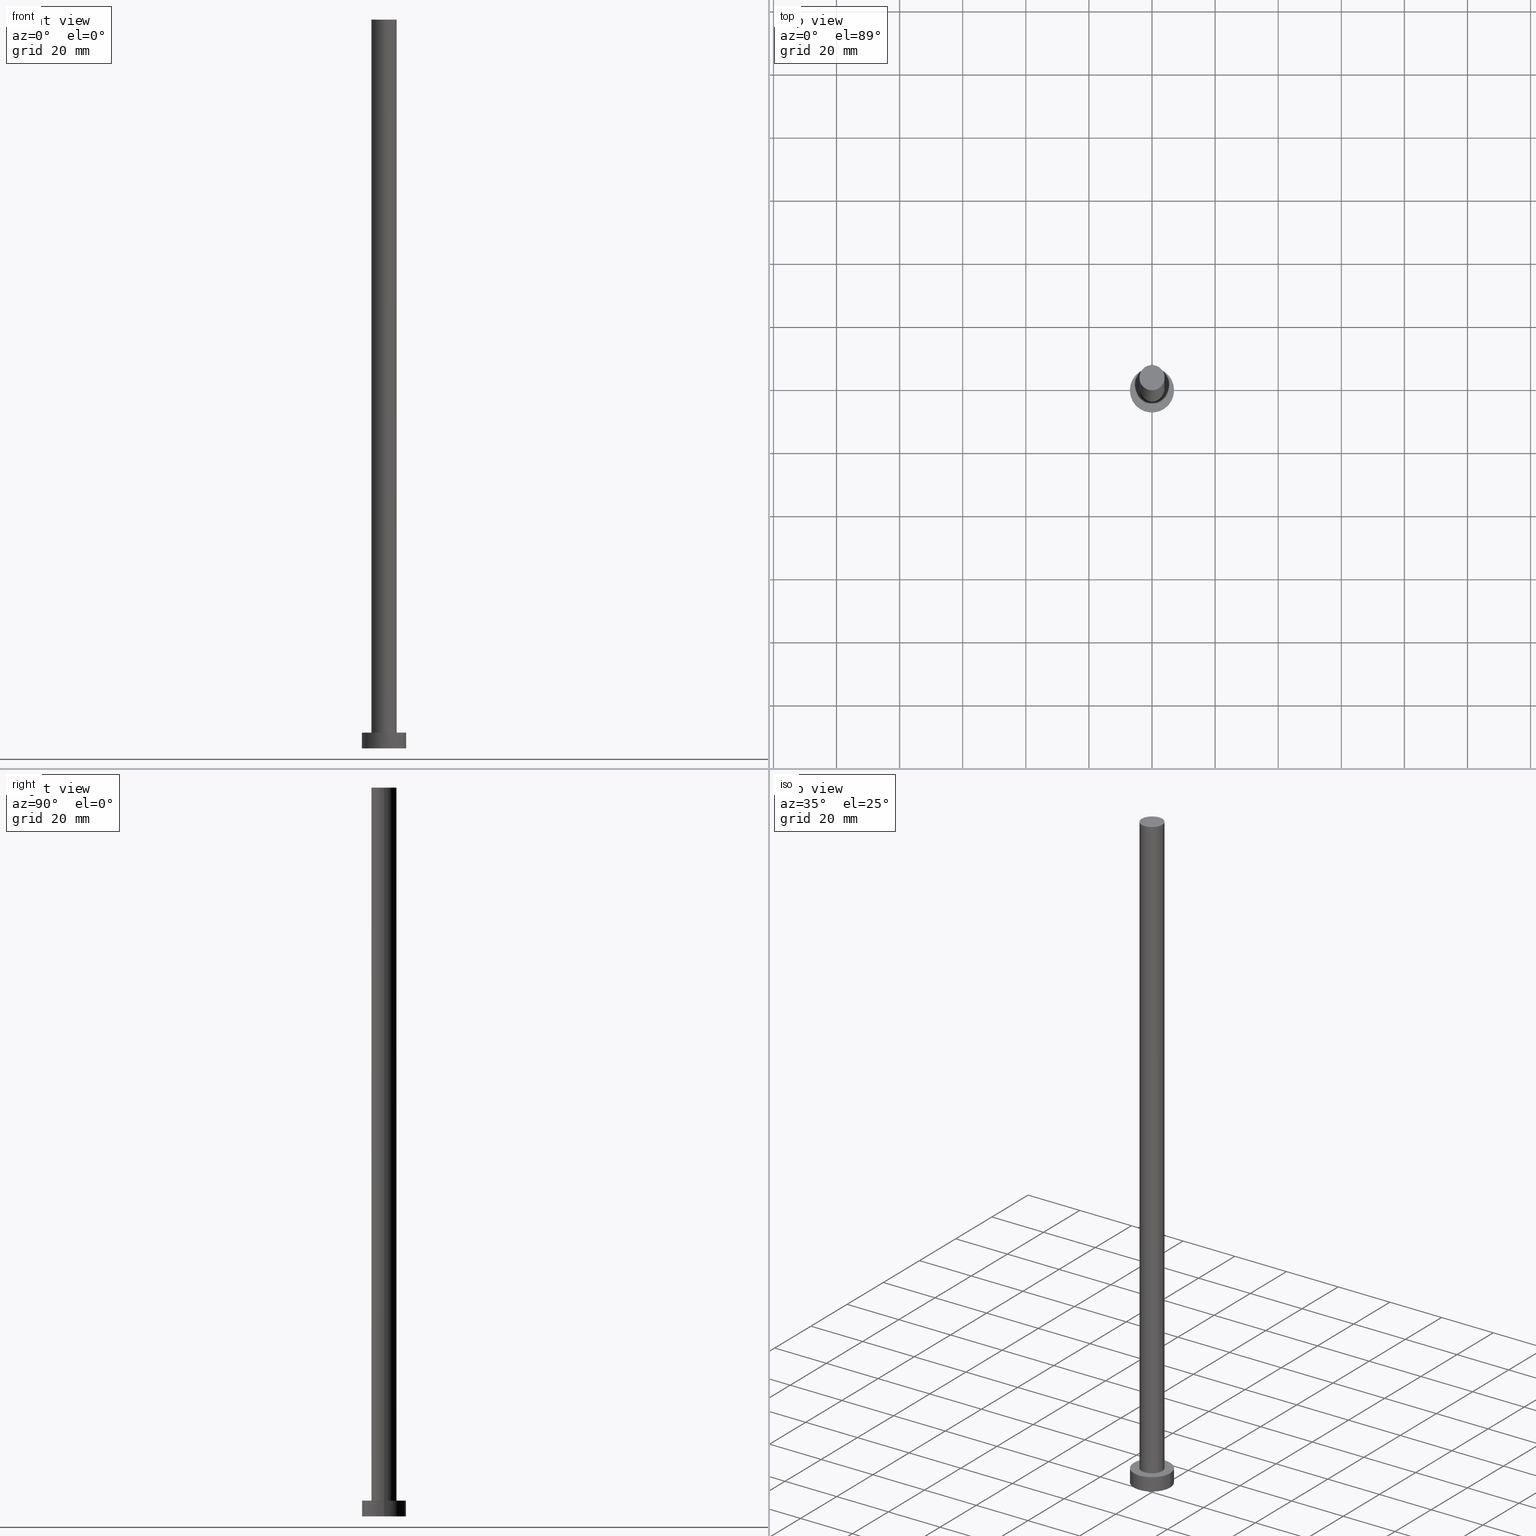
[diagram: canonical four-view strip — front | top / right | iso, engineering-drawing reading convention]
A machine part, canonical four-view strip (front | top / right | iso — engineering-drawing reading convention). The complete STEP part file that produces these views, byte-faithful:
ISO-10303-21;
HEADER;
FILE_DESCRIPTION (( 'STEP AP203' ),
    '1' );
FILE_NAME ('951f.STEP',
    '2023-04-05T07:37:20',
    ( '' ),
    ( '' ),
    'SwSTEP 2.0',
    'SolidWorks 2019',
    '' );
FILE_SCHEMA (( 'CONFIG_CONTROL_DESIGN' ));
ENDSEC;

DATA;
#1 = AXIS2_PLACEMENT_3D ( 'NONE', #86, #227, #206 ) ;
#2 = AXIS2_PLACEMENT_3D ( 'NONE', #251, #211, #135 ) ;
#3 = ORIENTED_EDGE ( 'NONE', *, *, #184, .T. ) ;
#4 = ORIENTED_EDGE ( 'NONE', *, *, #184, .F. ) ;
#5 = APPROVAL ( #217, 'NEUR�EN�' ) ;
#6 = EDGE_LOOP ( 'NONE', ( #4, #103, #166, #165 ) ) ;
#7 = COORDINATED_UNIVERSAL_TIME_OFFSET ( 1, 0, .AHEAD. ) ;
#8 = AXIS2_PLACEMENT_3D ( 'NONE', #20, #18, #118 ) ;
#9 = DIRECTION ( 'NONE',  ( 1.000000000000000000, 0.000000000000000000, -0.000000000000000000 ) ) ;
#10 = APPROVAL_STATUS ( 'not_yet_approved' ) ;
#11 = PLANE ( 'NONE',  #22 ) ;
#12 = CIRCLE ( 'NONE', #138, 4.000000000000000000 ) ;
#13 = CIRCLE ( 'NONE', #123, 4.000000000000000000 ) ;
#14 = FACE_OUTER_BOUND ( 'NONE', #85, .T. ) ;
#15 = ADVANCED_BREP_SHAPE_REPRESENTATION ( '951f', ( #133, #181 ), #151 ) ;
#16 = APPLICATION_PROTOCOL_DEFINITION ( 'international standard', 'config_control_design', 1994, #183 ) ;
#17 = CARTESIAN_POINT ( 'NONE',  ( 0.000000000000000000, 0.000000000000000000, 231.0000000000000000 ) ) ;
#18 = DIRECTION ( 'NONE',  ( 0.000000000000000000, 0.000000000000000000, 1.000000000000000000 ) ) ;
#19 = EDGE_CURVE ( 'NONE', #191, #44, #214, .T. ) ;
#20 = CARTESIAN_POINT ( 'NONE',  ( 0.000000000000000000, 0.000000000000000000, 231.0000000000000000 ) ) ;
#21 = FACE_BOUND ( 'NONE', #145, .T. ) ;
#22 = AXIS2_PLACEMENT_3D ( 'NONE', #113, #91, #9 ) ;
#23 = COORDINATED_UNIVERSAL_TIME_OFFSET ( 1, 0, .AHEAD. ) ;
#24 = PRODUCT_DEFINITION_SHAPE ( 'NONE', 'NONE',  #137 ) ;
#25 = CC_DESIGN_PERSON_AND_ORGANIZATION_ASSIGNMENT ( #127, #111, ( #144 ) ) ;
#26 = VERTEX_POINT ( 'NONE', #77 ) ;
#27 = ORIENTED_EDGE ( 'NONE', *, *, #161, .F. ) ;
#28 = CC_DESIGN_PERSON_AND_ORGANIZATION_ASSIGNMENT ( #61, #83, ( #137 ) ) ;
#29 = FACE_OUTER_BOUND ( 'NONE', #163, .T. ) ;
#30 = CARTESIAN_POINT ( 'NONE',  ( 0.000000000000000000, 0.000000000000000000, 0.000000000000000000 ) ) ;
#31 = PERSON_AND_ORGANIZATION ( #242, #128 ) ;
#32 = ORIENTED_EDGE ( 'NONE', *, *, #170, .T. ) ;
#33 = EDGE_CURVE ( 'NONE', #191, #238, #190, .T. ) ;
#34 = DIRECTION ( 'NONE',  ( -0.000000000000000000, -0.000000000000000000, -1.000000000000000000 ) ) ;
#35 = PLANE ( 'NONE',  #231 ) ;
#36 = CARTESIAN_POINT ( 'NONE',  ( 0.000000000000000000, 0.000000000000000000, 5.000000000000000000 ) ) ;
#37 = PERSON_AND_ORGANIZATION ( #242, #128 ) ;
#38 = LOCAL_TIME ( 9, 37, 20.00000000000000000, #207 ) ;
#39 = CIRCLE ( 'NONE', #92, 7.000000000000000000 ) ;
#40 = CALENDAR_DATE ( 2023, 5, 4 ) ;
#41 = ORIENTED_EDGE ( 'NONE', *, *, #114, .F. ) ;
#42 = PRODUCT_RELATED_PRODUCT_CATEGORY ( 'detail', '', ( #105 ) ) ;
#43 = CIRCLE ( 'NONE', #2, 7.000000000000000000 ) ;
#44 = VERTEX_POINT ( 'NONE', #46 ) ;
#45 = ADVANCED_FACE ( 'NONE', ( #29 ), #11, .T. ) ;
#46 = CARTESIAN_POINT ( 'NONE',  ( -7.000000000000000000, 0.000000000000000000, 5.000000000000000000 ) ) ;
#47 = VERTEX_POINT ( 'NONE', #152 ) ;
#48 = LINE ( 'NONE', #210, #124 ) ;
#49 = PLANE ( 'NONE',  #57 ) ;
#50 = ADVANCED_FACE ( 'NONE', ( #14 ), #188, .T. ) ;
#51 = EDGE_LOOP ( 'NONE', ( #72, #27, #122, #187 ) ) ;
#52 = AXIS2_PLACEMENT_3D ( 'NONE', #89, #110, #203 ) ;
#53 = PERSON_AND_ORGANIZATION ( #242, #128 ) ;
#54 = DIRECTION ( 'NONE',  ( -0.000000000000000000, -0.000000000000000000, -1.000000000000000000 ) ) ;
#55 = ADVANCED_FACE ( 'NONE', ( #154 ), #125, .T. ) ;
#56 = CARTESIAN_POINT ( 'NONE',  ( 7.000000000000000000, 8.572527594031473190E-16, 5.000000000000000000 ) ) ;
#57 = AXIS2_PLACEMENT_3D ( 'NONE', #246, #195, #88 ) ;
#58 = DIRECTION ( 'NONE',  ( 1.000000000000000000, 0.000000000000000000, 0.000000000000000000 ) ) ;
#59 = EDGE_CURVE ( 'NONE', #220, #238, #180, .T. ) ;
#60 = DIRECTION ( 'NONE',  ( 0.000000000000000000, 0.000000000000000000, 1.000000000000000000 ) ) ;
#61 = PERSON_AND_ORGANIZATION ( #242, #128 ) ;
#62 = ORIENTED_EDGE ( 'NONE', *, *, #33, .F. ) ;
#63 = AXIS2_PLACEMENT_3D ( 'NONE', #204, #175, #244 ) ;
#64 = CC_DESIGN_APPROVAL ( #108, ( #144 ) ) ;
#65 = APPROVAL ( #150, 'NEUR�EN�' ) ;
#66 = ORIENTED_EDGE ( 'NONE', *, *, #219, .F. ) ;
#67 = VECTOR ( 'NONE', #147, 1000.000000000000000 ) ;
#68 = ORIENTED_EDGE ( 'NONE', *, *, #170, .F. ) ;
#69 = LOCAL_TIME ( 9, 37, 20.00000000000000000, #200 ) ;
#70 = EDGE_LOOP ( 'NONE', ( #172, #218, #94, #66 ) ) ;
#71 = APPLICATION_CONTEXT ( 'configuration controlled 3d designs of mechanical parts and assemblies' ) ;
#72 = ORIENTED_EDGE ( 'NONE', *, *, #117, .F. ) ;
#73 = DIRECTION ( 'NONE',  ( 1.000000000000000000, 0.000000000000000000, 0.000000000000000000 ) ) ;
#74 = DATE_AND_TIME ( #131, #240 ) ;
#75 = ORIENTED_EDGE ( 'NONE', *, *, #19, .T. ) ;
#76 = PERSON_AND_ORGANIZATION_ROLE ( 'classification_officer' ) ;
#77 = CARTESIAN_POINT ( 'NONE',  ( 4.000000000000000000, 4.898587196589412829E-16, 5.000000000000000000 ) ) ;
#78 = MECHANICAL_CONTEXT ( 'NONE', #183, 'mechanical' ) ;
#79 = LINE ( 'NONE', #213, #201 ) ;
#80 = DIRECTION ( 'NONE',  ( 0.000000000000000000, 0.000000000000000000, 1.000000000000000000 ) ) ;
#81 = DIRECTION ( 'NONE',  ( 1.000000000000000000, 0.000000000000000000, 0.000000000000000000 ) ) ;
#82 = AXIS2_PLACEMENT_3D ( 'NONE', #17, #198, #216 ) ;
#83 = PERSON_AND_ORGANIZATION_ROLE ( 'creator' ) ;
#84 = VECTOR ( 'NONE', #136, 1000.000000000000000 ) ;
#85 = EDGE_LOOP ( 'NONE', ( #62, #68, #129, #106 ) ) ;
#86 = CARTESIAN_POINT ( 'NONE',  ( 0.000000000000000000, 0.000000000000000000, 5.000000000000000000 ) ) ;
#87 = APPROVAL_PERSON_ORGANIZATION ( #53, #5, #100 ) ;
#88 = DIRECTION ( 'NONE',  ( 1.000000000000000000, 0.000000000000000000, -0.000000000000000000 ) ) ;
#89 = CARTESIAN_POINT ( 'NONE',  ( 0.000000000000000000, 0.000000000000000000, 5.000000000000000000 ) ) ;
#90 = ADVANCED_FACE ( 'NONE', ( #149 ), #49, .F. ) ;
#91 = DIRECTION ( 'NONE',  ( 0.000000000000000000, 0.000000000000000000, 1.000000000000000000 ) ) ;
#92 = AXIS2_PLACEMENT_3D ( 'NONE', #224, #248, #229 ) ;
#93 = DATE_AND_TIME ( #194, #38 ) ;
#94 = ORIENTED_EDGE ( 'NONE', *, *, #114, .T. ) ;
#95 = PERSON_AND_ORGANIZATION ( #242, #128 ) ;
#96 = UNCERTAINTY_MEASURE_WITH_UNIT (LENGTH_MEASURE( 1.000000000000000082E-05 ), #159, 'distance_accuracy_value', 'NONE');
#97 = ADVANCED_FACE ( 'NONE', ( #171 ), #243, .T. ) ;
#98 =( NAMED_UNIT ( * ) SI_UNIT ( $, .STERADIAN. ) SOLID_ANGLE_UNIT ( ) );
#99 = DIRECTION ( 'NONE',  ( 1.000000000000000000, 0.000000000000000000, 0.000000000000000000 ) ) ;
#100 = APPROVAL_ROLE ( '' ) ;
#101 = LOCAL_TIME ( 9, 37, 20.00000000000000000, #23 ) ;
#102 = AXIS2_PLACEMENT_3D ( 'NONE', #30, #174, #73 ) ;
#103 = ORIENTED_EDGE ( 'NONE', *, *, #117, .T. ) ;
#104 = CARTESIAN_POINT ( 'NONE',  ( 7.000000000000000000, 8.572527594031473190E-16, 5.000000000000000000 ) ) ;
#105 = PRODUCT ( '951f', '951f', '', ( #78 ) ) ;
#106 = ORIENTED_EDGE ( 'NONE', *, *, #59, .T. ) ;
#107 = PERSON_AND_ORGANIZATION_ROLE ( 'creator' ) ;
#108 = APPROVAL ( #10, 'NEUR�EN�' ) ;
#109 = VERTEX_POINT ( 'NONE', #193 ) ;
#110 = DIRECTION ( 'NONE',  ( -0.000000000000000000, -0.000000000000000000, -1.000000000000000000 ) ) ;
#111 = PERSON_AND_ORGANIZATION_ROLE ( 'design_supplier' ) ;
#112 = CC_DESIGN_APPROVAL ( #5, ( #137 ) ) ;
#113 = CARTESIAN_POINT ( 'NONE',  ( 0.000000000000000000, 0.000000000000000000, 231.0000000000000000 ) ) ;
#114 = EDGE_CURVE ( 'NONE', #238, #220, #39, .T. ) ;
#115 = DIRECTION ( 'NONE',  ( 1.000000000000000000, 0.000000000000000000, -0.000000000000000000 ) ) ;
#116 =( NAMED_UNIT ( * ) PLANE_ANGLE_UNIT ( ) SI_UNIT ( $, .RADIAN. ) );
#117 = EDGE_CURVE ( 'NONE', #121, #26, #48, .T. ) ;
#118 = DIRECTION ( 'NONE',  ( 1.000000000000000000, 0.000000000000000000, 0.000000000000000000 ) ) ;
#119 = CARTESIAN_POINT ( 'NONE',  ( -7.000000000000000000, 0.000000000000000000, 5.000000000000000000 ) ) ;
#120 = SECURITY_CLASSIFICATION ( '', '', #205 ) ;
#121 = VERTEX_POINT ( 'NONE', #176 ) ;
#122 = ORIENTED_EDGE ( 'NONE', *, *, #226, .T. ) ;
#123 = AXIS2_PLACEMENT_3D ( 'NONE', #249, #80, #81 ) ;
#124 = VECTOR ( 'NONE', #34, 1000.000000000000000 ) ;
#125 = CYLINDRICAL_SURFACE ( 'NONE', #52, 7.000000000000000000 ) ;
#126 = ORIENTED_EDGE ( 'NONE', *, *, #141, .F. ) ;
#127 = PERSON_AND_ORGANIZATION ( #242, #128 ) ;
#128 = ORGANIZATION ( 'NEUR�EN�', 'NEUR�EN�', '' ) ;
#129 = ORIENTED_EDGE ( 'NONE', *, *, #219, .T. ) ;
#130 = DIRECTION ( 'NONE',  ( -1.000000000000000000, 0.000000000000000000, 0.000000000000000000 ) ) ;
#131 = CALENDAR_DATE ( 2023, 5, 4 ) ;
#132 = DIRECTION ( 'NONE',  ( -0.000000000000000000, -0.000000000000000000, -1.000000000000000000 ) ) ;
#133 = MANIFOLD_SOLID_BREP ( 'P�idat vysunut�m3', #156 ) ;
#134 = LOCAL_TIME ( 9, 37, 20.00000000000000000, #153 ) ;
#135 = DIRECTION ( 'NONE',  ( 1.000000000000000000, 0.000000000000000000, 0.000000000000000000 ) ) ;
#136 = DIRECTION ( 'NONE',  ( -0.000000000000000000, -0.000000000000000000, -1.000000000000000000 ) ) ;
#137 = PRODUCT_DEFINITION ( 'NEZN�M�', '', #144, #192 ) ;
#138 = AXIS2_PLACEMENT_3D ( 'NONE', #178, #196, #232 ) ;
#139 = FACE_OUTER_BOUND ( 'NONE', #51, .T. ) ;
#140 = APPROVAL_DATE_TIME ( #237, #5 ) ;
#141 = EDGE_CURVE ( 'NONE', #47, #26, #13, .T. ) ;
#142 = CC_DESIGN_PERSON_AND_ORGANIZATION_ASSIGNMENT ( #37, #157, ( #105 ) ) ;
#143 = ORIENTED_EDGE ( 'NONE', *, *, #59, .F. ) ;
#144 = PRODUCT_DEFINITION_FORMATION_WITH_SPECIFIED_SOURCE ( 'LIBOVOLN�', '', #105, .NOT_KNOWN. ) ;
#145 = EDGE_LOOP ( 'NONE', ( #126, #185 ) ) ;
#146 = CC_DESIGN_PERSON_AND_ORGANIZATION_ASSIGNMENT ( #31, #76, ( #120 ) ) ;
#147 = DIRECTION ( 'NONE',  ( -0.000000000000000000, -0.000000000000000000, -1.000000000000000000 ) ) ;
#148 = APPROVAL_ROLE ( '' ) ;
#149 = FACE_OUTER_BOUND ( 'NONE', #186, .T. ) ;
#150 = APPROVAL_STATUS ( 'not_yet_approved' ) ;
#151 =( GEOMETRIC_REPRESENTATION_CONTEXT ( 3 ) GLOBAL_UNCERTAINTY_ASSIGNED_CONTEXT ( ( #96 ) ) GLOBAL_UNIT_ASSIGNED_CONTEXT ( ( #159, #116, #98 ) ) REPRESENTATION_CONTEXT ( 'NONE', 'WORKASPACE' ) );
#152 = CARTESIAN_POINT ( 'NONE',  ( -4.000000000000000000, 0.000000000000000000, 5.000000000000000000 ) ) ;
#153 = COORDINATED_UNIVERSAL_TIME_OFFSET ( 1, 0, .AHEAD. ) ;
#154 = FACE_OUTER_BOUND ( 'NONE', #70, .T. ) ;
#155 = CARTESIAN_POINT ( 'NONE',  ( -7.000000000000000000, 0.000000000000000000, 0.000000000000000000 ) ) ;
#156 = CLOSED_SHELL ( 'NONE', ( #97, #55, #50, #239, #90, #208, #45 ) ) ;
#157 = PERSON_AND_ORGANIZATION_ROLE ( 'design_owner' ) ;
#158 = CC_DESIGN_PERSON_AND_ORGANIZATION_ASSIGNMENT ( #95, #107, ( #144 ) ) ;
#159 =( LENGTH_UNIT ( ) NAMED_UNIT ( * ) SI_UNIT ( .MILLI., .METRE. ) );
#160 = CARTESIAN_POINT ( 'NONE',  ( 0.000000000000000000, 0.000000000000000000, 5.000000000000000000 ) ) ;
#161 = EDGE_CURVE ( 'NONE', #109, #121, #12, .T. ) ;
#162 = DATE_TIME_ROLE ( 'creation_date' ) ;
#163 = EDGE_LOOP ( 'NONE', ( #168, #3 ) ) ;
#164 = CC_DESIGN_APPROVAL ( #65, ( #120 ) ) ;
#165 = ORIENTED_EDGE ( 'NONE', *, *, #226, .F. ) ;
#166 = ORIENTED_EDGE ( 'NONE', *, *, #212, .T. ) ;
#167 = AXIS2_PLACEMENT_3D ( 'NONE', #222, #132, #130 ) ;
#168 = ORIENTED_EDGE ( 'NONE', *, *, #161, .T. ) ;
#169 = APPROVAL_PERSON_ORGANIZATION ( #245, #65, #173 ) ;
#170 = EDGE_CURVE ( 'NONE', #44, #191, #43, .T. ) ;
#171 = FACE_OUTER_BOUND ( 'NONE', #6, .T. ) ;
#172 = ORIENTED_EDGE ( 'NONE', *, *, #19, .F. ) ;
#173 = APPROVAL_ROLE ( '' ) ;
#174 = DIRECTION ( 'NONE',  ( 0.000000000000000000, 0.000000000000000000, 1.000000000000000000 ) ) ;
#175 = DIRECTION ( 'NONE',  ( 0.000000000000000000, 0.000000000000000000, 1.000000000000000000 ) ) ;
#176 = CARTESIAN_POINT ( 'NONE',  ( 4.000000000000000000, 4.898587196589412829E-16, 231.0000000000000000 ) ) ;
#177 = AXIS2_PLACEMENT_3D ( 'NONE', #160, #233, #99 ) ;
#178 = CARTESIAN_POINT ( 'NONE',  ( 0.000000000000000000, 0.000000000000000000, 231.0000000000000000 ) ) ;
#179 = FACE_OUTER_BOUND ( 'NONE', #241, .T. ) ;
#180 = CIRCLE ( 'NONE', #102, 7.000000000000000000 ) ;
#181 = AXIS2_PLACEMENT_3D ( 'NONE', #253, #234, #58 ) ;
#182 = DATE_AND_TIME ( #255, #101 ) ;
#183 = APPLICATION_CONTEXT ( 'configuration controlled 3d designs of mechanical parts and assemblies' ) ;
#184 = EDGE_CURVE ( 'NONE', #121, #109, #235, .T. ) ;
#185 = ORIENTED_EDGE ( 'NONE', *, *, #212, .F. ) ;
#186 = EDGE_LOOP ( 'NONE', ( #143, #41 ) ) ;
#187 = ORIENTED_EDGE ( 'NONE', *, *, #141, .T. ) ;
#188 = CYLINDRICAL_SURFACE ( 'NONE', #1, 7.000000000000000000 ) ;
#189 = PERSON_AND_ORGANIZATION ( #242, #128 ) ;
#190 = LINE ( 'NONE', #104, #67 ) ;
#191 = VERTEX_POINT ( 'NONE', #56 ) ;
#192 = DESIGN_CONTEXT ( 'detailed design', #71, 'design' ) ;
#193 = CARTESIAN_POINT ( 'NONE',  ( -4.000000000000000000, 0.000000000000000000, 231.0000000000000000 ) ) ;
#194 = CALENDAR_DATE ( 2023, 5, 4 ) ;
#195 = DIRECTION ( 'NONE',  ( 0.000000000000000000, 0.000000000000000000, 1.000000000000000000 ) ) ;
#196 = DIRECTION ( 'NONE',  ( 0.000000000000000000, 0.000000000000000000, 1.000000000000000000 ) ) ;
#197 = CC_DESIGN_DATE_AND_TIME_ASSIGNMENT ( #182, #162, ( #137 ) ) ;
#198 = DIRECTION ( 'NONE',  ( -0.000000000000000000, -0.000000000000000000, -1.000000000000000000 ) ) ;
#199 = CYLINDRICAL_SURFACE ( 'NONE', #82, 4.000000000000000000 ) ;
#200 = COORDINATED_UNIVERSAL_TIME_OFFSET ( 1, 0, .AHEAD. ) ;
#201 = VECTOR ( 'NONE', #54, 1000.000000000000000 ) ;
#202 = CC_DESIGN_DATE_AND_TIME_ASSIGNMENT ( #93, #247, ( #120 ) ) ;
#203 = DIRECTION ( 'NONE',  ( -1.000000000000000000, 0.000000000000000000, 0.000000000000000000 ) ) ;
#204 = CARTESIAN_POINT ( 'NONE',  ( 0.000000000000000000, 0.000000000000000000, 5.000000000000000000 ) ) ;
#205 = SECURITY_CLASSIFICATION_LEVEL ( 'unclassified' ) ;
#206 = DIRECTION ( 'NONE',  ( -1.000000000000000000, 0.000000000000000000, 0.000000000000000000 ) ) ;
#207 = COORDINATED_UNIVERSAL_TIME_OFFSET ( 1, 0, .AHEAD. ) ;
#208 = ADVANCED_FACE ( 'NONE', ( #139 ), #199, .T. ) ;
#209 = SHAPE_DEFINITION_REPRESENTATION ( #24, #15 ) ;
#210 = CARTESIAN_POINT ( 'NONE',  ( 4.000000000000000000, 4.898587196589412829E-16, 231.0000000000000000 ) ) ;
#211 = DIRECTION ( 'NONE',  ( 0.000000000000000000, 0.000000000000000000, 1.000000000000000000 ) ) ;
#212 = EDGE_CURVE ( 'NONE', #26, #47, #215, .T. ) ;
#213 = CARTESIAN_POINT ( 'NONE',  ( -4.000000000000000000, 0.000000000000000000, 231.0000000000000000 ) ) ;
#214 = CIRCLE ( 'NONE', #63, 7.000000000000000000 ) ;
#215 = CIRCLE ( 'NONE', #177, 4.000000000000000000 ) ;
#216 = DIRECTION ( 'NONE',  ( -1.000000000000000000, 0.000000000000000000, 0.000000000000000000 ) ) ;
#217 = APPROVAL_STATUS ( 'not_yet_approved' ) ;
#218 = ORIENTED_EDGE ( 'NONE', *, *, #33, .T. ) ;
#219 = EDGE_CURVE ( 'NONE', #44, #220, #236, .T. ) ;
#220 = VERTEX_POINT ( 'NONE', #155 ) ;
#221 = CALENDAR_DATE ( 2023, 5, 4 ) ;
#222 = CARTESIAN_POINT ( 'NONE',  ( 0.000000000000000000, 0.000000000000000000, 231.0000000000000000 ) ) ;
#223 = APPROVAL_DATE_TIME ( #74, #108 ) ;
#224 = CARTESIAN_POINT ( 'NONE',  ( 0.000000000000000000, 0.000000000000000000, 0.000000000000000000 ) ) ;
#225 = APPROVAL_DATE_TIME ( #228, #65 ) ;
#226 = EDGE_CURVE ( 'NONE', #109, #47, #79, .T. ) ;
#227 = DIRECTION ( 'NONE',  ( -0.000000000000000000, -0.000000000000000000, -1.000000000000000000 ) ) ;
#228 = DATE_AND_TIME ( #221, #134 ) ;
#229 = DIRECTION ( 'NONE',  ( 1.000000000000000000, 0.000000000000000000, 0.000000000000000000 ) ) ;
#230 = APPLICATION_PROTOCOL_DEFINITION ( 'international standard', 'config_control_design', 1994, #71 ) ;
#231 = AXIS2_PLACEMENT_3D ( 'NONE', #36, #60, #115 ) ;
#232 = DIRECTION ( 'NONE',  ( 1.000000000000000000, 0.000000000000000000, 0.000000000000000000 ) ) ;
#233 = DIRECTION ( 'NONE',  ( 0.000000000000000000, 0.000000000000000000, 1.000000000000000000 ) ) ;
#234 = DIRECTION ( 'NONE',  ( 0.000000000000000000, 0.000000000000000000, 1.000000000000000000 ) ) ;
#235 = CIRCLE ( 'NONE', #8, 4.000000000000000000 ) ;
#236 = LINE ( 'NONE', #119, #84 ) ;
#237 = DATE_AND_TIME ( #40, #69 ) ;
#238 = VERTEX_POINT ( 'NONE', #252 ) ;
#239 = ADVANCED_FACE ( 'NONE', ( #21, #179 ), #35, .T. ) ;
#240 = LOCAL_TIME ( 9, 37, 20.00000000000000000, #7 ) ;
#241 = EDGE_LOOP ( 'NONE', ( #32, #75 ) ) ;
#242 = PERSON ( 'NEUR�EN�', 'NEUR�EN�', 'NEUR�EN�', ('NEUR�EN�'), ('NEUR�EN�'), ('NEUR�EN�') ) ;
#243 = CYLINDRICAL_SURFACE ( 'NONE', #167, 4.000000000000000000 ) ;
#244 = DIRECTION ( 'NONE',  ( 1.000000000000000000, 0.000000000000000000, 0.000000000000000000 ) ) ;
#245 = PERSON_AND_ORGANIZATION ( #242, #128 ) ;
#246 = CARTESIAN_POINT ( 'NONE',  ( 0.000000000000000000, 0.000000000000000000, 0.000000000000000000 ) ) ;
#247 = DATE_TIME_ROLE ( 'classification_date' ) ;
#248 = DIRECTION ( 'NONE',  ( 0.000000000000000000, 0.000000000000000000, 1.000000000000000000 ) ) ;
#249 = CARTESIAN_POINT ( 'NONE',  ( 0.000000000000000000, 0.000000000000000000, 5.000000000000000000 ) ) ;
#250 = CC_DESIGN_SECURITY_CLASSIFICATION ( #120, ( #144 ) ) ;
#251 = CARTESIAN_POINT ( 'NONE',  ( 0.000000000000000000, 0.000000000000000000, 5.000000000000000000 ) ) ;
#252 = CARTESIAN_POINT ( 'NONE',  ( 7.000000000000000000, 8.572527594031473190E-16, 0.000000000000000000 ) ) ;
#253 = CARTESIAN_POINT ( 'NONE',  ( 0.000000000000000000, 0.000000000000000000, 0.000000000000000000 ) ) ;
#254 = APPROVAL_PERSON_ORGANIZATION ( #189, #108, #148 ) ;
#255 = CALENDAR_DATE ( 2023, 5, 4 ) ;
ENDSEC;
END-ISO-10303-21;
